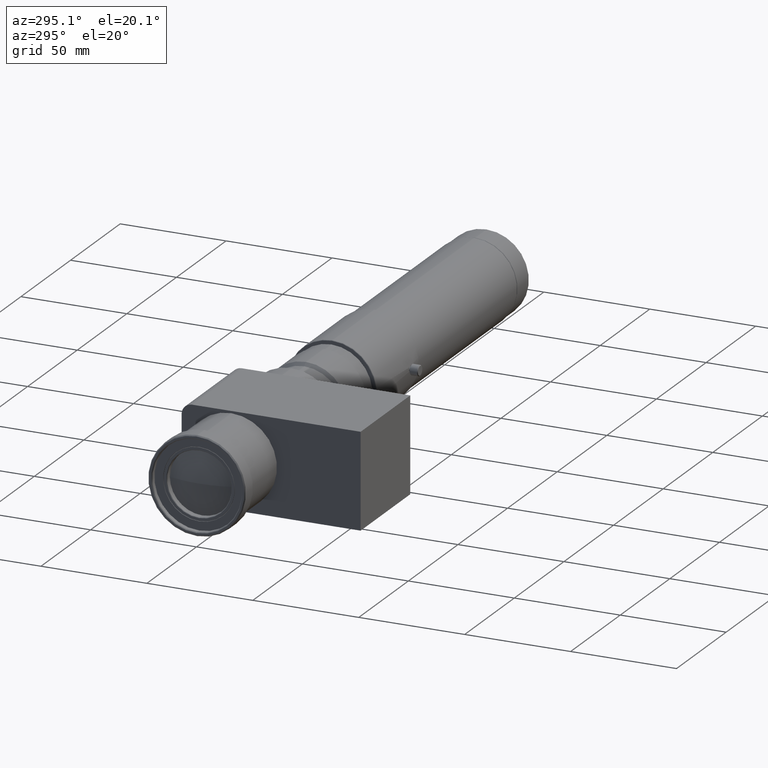
[diagram: clean part render]
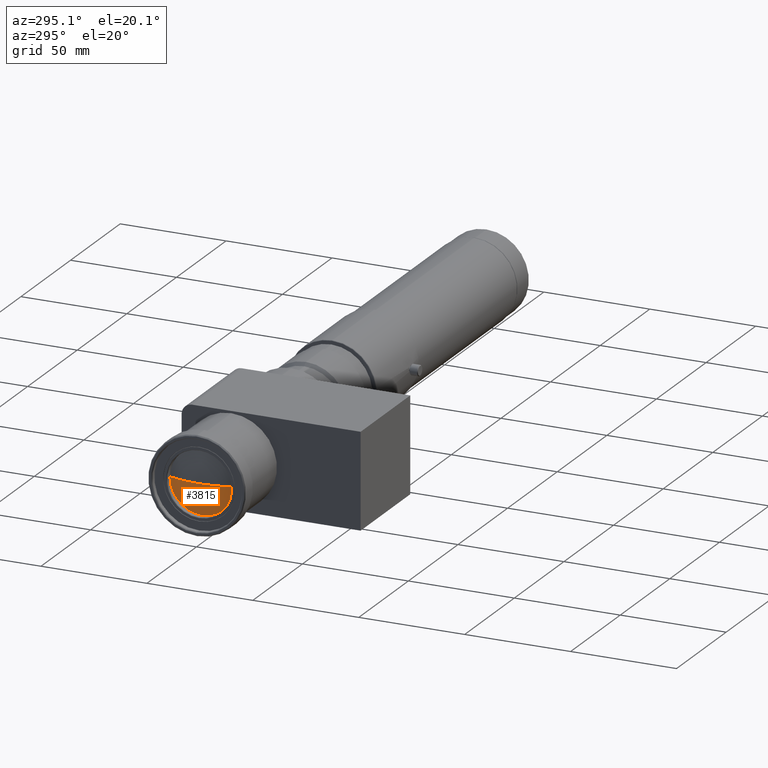
[diagram: same view with one face highlighted and labeled with its STEP entity id]
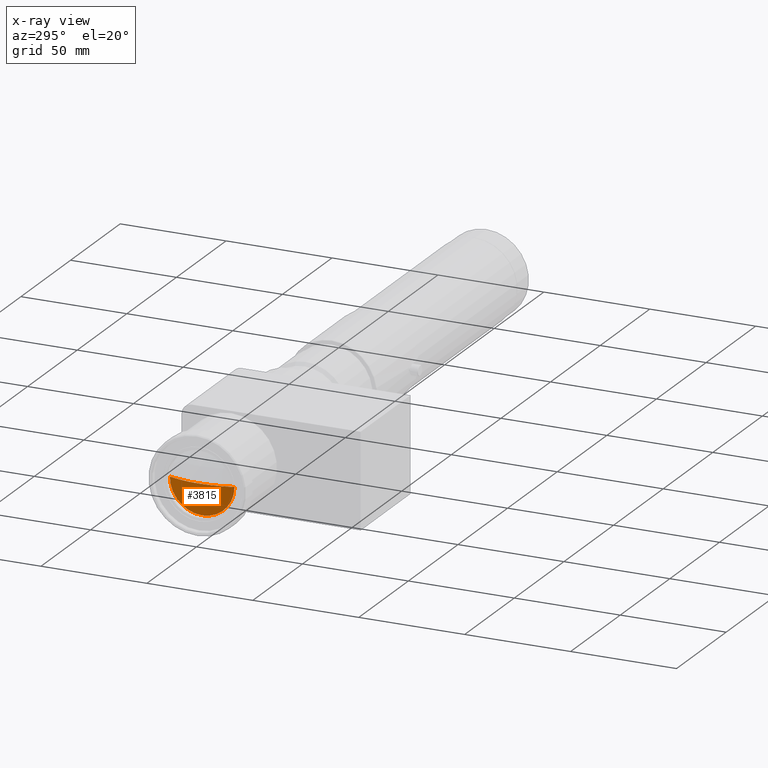
[diagram: x-ray of the same camera — body ghosted, the highlighted face saturated]
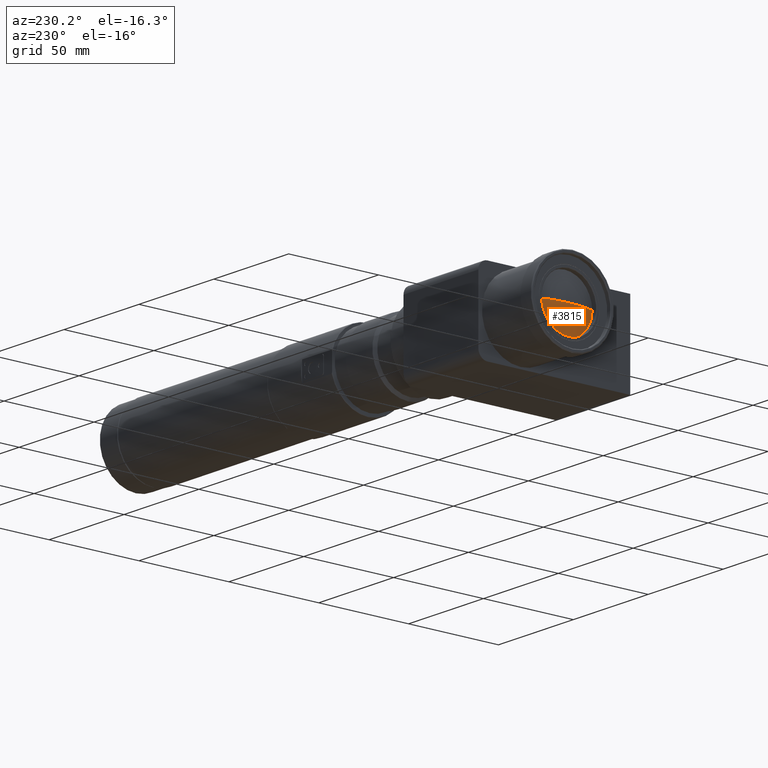
[diagram: same view with one face highlighted and labeled with its STEP entity id]
A machine part, auxiliary view. The second image highlights one B-rep face of the part: STEP entity #3815.
The next image is the same camera in x-ray: the body ghosted, the highlighted face saturated — about 0% of this face is hidden behind the body in this view.
A second angle (auxiliary view) of the same face is appended — the face is thin or edge-on in the first view.
In plain terms, the highlighted spherical surface has radius 47 mm.
Its self-contained STEP definition (entity closure, byte-faithful):
#2 = VERTEX_POINT ( 'NONE', #2525 ) ;
#124 = ORIENTED_EDGE ( 'NONE', *, *, #5492, .F. ) ;
#215 = AXIS2_PLACEMENT_3D ( 'NONE', #348, #5431, #2911 ) ;
#348 = CARTESIAN_POINT ( 'NONE',  ( 50.14290271084704600, 1.387778780781445700E-014, 0.0000000000000000000 ) ) ;
#896 = DIRECTION ( 'NONE',  ( 0.0000000000000000000, 0.0000000000000000000, -1.000000000000000000 ) ) ;
#1041 = CARTESIAN_POINT ( 'NONE',  ( 50.14290271084704600, 1.387778780781445700E-014, 0.0000000000000000000 ) ) ;
#1158 = AXIS2_PLACEMENT_3D ( 'NONE', #4044, #1505, #4456 ) ;
#1306 = VERTEX_POINT ( 'NONE', #5220 ) ;
#1307 = FACE_OUTER_BOUND ( 'NONE', #1561, .T. ) ;
#1430 = SPHERICAL_SURFACE ( 'NONE', #215, 47.00000000000000000 ) ;
#1477 = DIRECTION ( 'NONE',  ( 0.0000000000000000000, -1.000000000000000000, 1.224646799147353200E-016 ) ) ;
#1503 = EDGE_CURVE ( 'NONE', #1306, #3733, #4370, .T. ) ;
#1505 = DIRECTION ( 'NONE',  ( 1.000000000000000000, -0.0000000000000000000, -0.0000000000000000000 ) ) ;
#1507 = CIRCLE ( 'NONE', #1158, 15.25000000000001400 ) ;
#1561 = EDGE_LOOP ( 'NONE', ( #3966, #3866, #3685, #124 ) ) ;
#1578 = EDGE_CURVE ( 'NONE', #2, #3733, #5212, .T. ) ;
#1914 = CARTESIAN_POINT ( 'NONE',  ( 5.685760427519836600, -15.25000000000000400, 1.867586368699715700E-015 ) ) ;
#1994 = CARTESIAN_POINT ( 'NONE',  ( 5.685760427519836600, 0.0000000000000000000, 0.0000000000000000000 ) ) ;
#2174 = AXIS2_PLACEMENT_3D ( 'NONE', #3437, #896, #3871 ) ;
#2248 = EDGE_CURVE ( 'NONE', #1306, #4346, #4961, .T. ) ;
#2418 = DIRECTION ( 'NONE',  ( 0.0000000000000000000, 0.0000000000000000000, -1.000000000000000000 ) ) ;
#2525 = CARTESIAN_POINT ( 'NONE',  ( 5.685760427519836600, 0.0000000000000000000, -15.25000000000001400 ) ) ;
#2911 = DIRECTION ( 'NONE',  ( 0.0000000000000000000, 1.000000000000000000, 0.0000000000000000000 ) ) ;
#2983 = AXIS2_PLACEMENT_3D ( 'NONE', #1041, #4009, #1477 ) ;
#3437 = CARTESIAN_POINT ( 'NONE',  ( 50.14290271084704600, 1.387778780781445700E-014, 0.0000000000000000000 ) ) ;
#3685 = ORIENTED_EDGE ( 'NONE', *, *, #1578, .F. ) ;
#3733 = VERTEX_POINT ( 'NONE', #4434 ) ;
#3815 = ADVANCED_FACE ( 'NONE', ( #1307 ), #1430, .T. ) ;
#3866 = ORIENTED_EDGE ( 'NONE', *, *, #1503, .T. ) ;
#3871 = DIRECTION ( 'NONE',  ( -1.000000000000000000, 0.0000000000000000000, 0.0000000000000000000 ) ) ;
#3874 = AXIS2_PLACEMENT_3D ( 'NONE', #1994, #4936, #2418 ) ;
#3966 = ORIENTED_EDGE ( 'NONE', *, *, #2248, .F. ) ;
#4009 = DIRECTION ( 'NONE',  ( 0.0000000000000000000, 1.224646799147353200E-016, 1.000000000000000000 ) ) ;
#4044 = CARTESIAN_POINT ( 'NONE',  ( 5.685760427519836600, 0.0000000000000000000, 0.0000000000000000000 ) ) ;
#4346 = VERTEX_POINT ( 'NONE', #1914 ) ;
#4370 = CIRCLE ( 'NONE', #2174, 47.00000000000000000 ) ;
#4434 = CARTESIAN_POINT ( 'NONE',  ( 5.685760427519836600, 15.25000000000001800, 0.0000000000000000000 ) ) ;
#4456 = DIRECTION ( 'NONE',  ( 0.0000000000000000000, 0.0000000000000000000, -1.000000000000000000 ) ) ;
#4936 = DIRECTION ( 'NONE',  ( 1.000000000000000000, -0.0000000000000000000, -0.0000000000000000000 ) ) ;
#4961 = CIRCLE ( 'NONE', #2983, 47.00000000000000000 ) ;
#5212 = CIRCLE ( 'NONE', #3874, 15.25000000000001400 ) ;
#5220 = CARTESIAN_POINT ( 'NONE',  ( 3.142902710847043800, 1.675570778581073600E-014, 0.0000000000000000000 ) ) ;
#5431 = DIRECTION ( 'NONE',  ( 0.0000000000000000000, -0.0000000000000000000, 1.000000000000000000 ) ) ;
#5492 = EDGE_CURVE ( 'NONE', #4346, #2, #1507, .T. ) ;